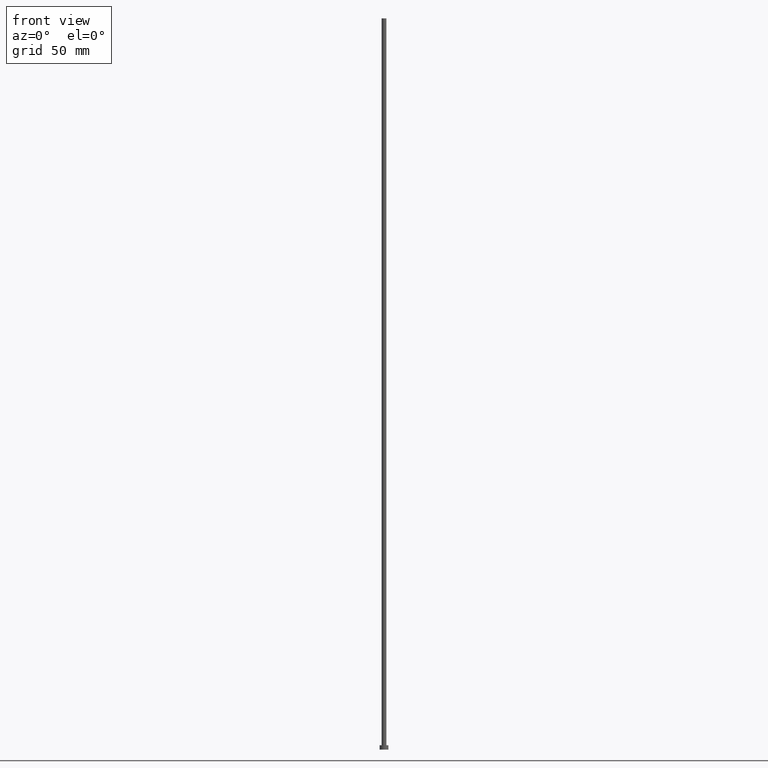
[diagram: clean part render]
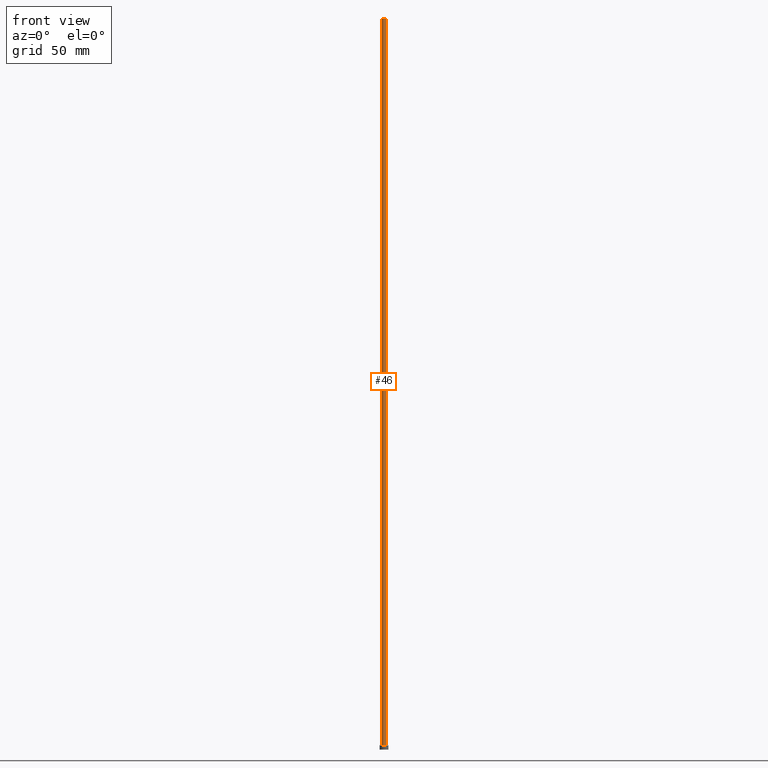
[diagram: same view with one face highlighted and labeled with its STEP entity id]
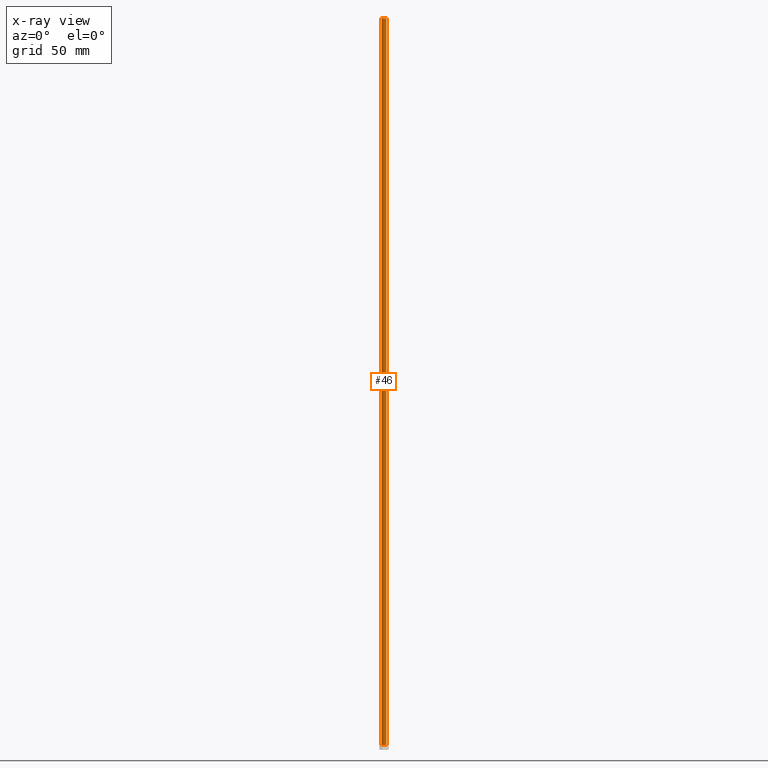
[diagram: x-ray of the same camera — body ghosted, the highlighted face saturated]
A machine part, front view. The second image highlights one B-rep face of the part: STEP entity #46.
The next image is the same camera in x-ray: the body ghosted, the highlighted face saturated — about 0% of this face is hidden behind the body in this view.
In plain terms, the highlighted cylindrical surface (edge-blend (fillet) strip) has radius 1.6 mm, axis along (-0, -0, -1).
Its self-contained STEP definition (entity closure, byte-faithful):
#7 = VECTOR ( 'NONE', #174, 1000.000000000000000 ) ;
#18 = VERTEX_POINT ( 'NONE', #149 ) ;
#22 = CARTESIAN_POINT ( 'NONE',  ( 0.000000000000000000, 0.000000000000000000, 500.0000000000000000 ) ) ;
#23 = ORIENTED_EDGE ( 'NONE', *, *, #136, .T. ) ;
#28 = CARTESIAN_POINT ( 'NONE',  ( -1.600000000000000089, 0.000000000000000000, 500.0000000000000000 ) ) ;
#30 = CARTESIAN_POINT ( 'NONE',  ( 0.000000000000000000, 0.000000000000000000, 3.000000000000000000 ) ) ;
#31 = CIRCLE ( 'NONE', #199, 1.600000000000000089 ) ;
#39 = EDGE_LOOP ( 'NONE', ( #222, #84, #166, #23 ) ) ;
#45 = EDGE_CURVE ( 'NONE', #133, #185, #31, .T. ) ;
#46 = ADVANCED_FACE ( 'NONE', ( #197 ), #57, .T. ) ;
#48 = LINE ( 'NONE', #141, #178 ) ;
#57 = CYLINDRICAL_SURFACE ( 'NONE', #97, 1.600000000000000089 ) ;
#58 = VERTEX_POINT ( 'NONE', #254 ) ;
#84 = ORIENTED_EDGE ( 'NONE', *, *, #45, .F. ) ;
#97 = AXIS2_PLACEMENT_3D ( 'NONE', #150, #126, #198 ) ;
#110 = DIRECTION ( 'NONE',  ( 1.000000000000000000, 0.000000000000000000, 0.000000000000000000 ) ) ;
#126 = DIRECTION ( 'NONE',  ( -0.000000000000000000, -0.000000000000000000, -1.000000000000000000 ) ) ;
#133 = VERTEX_POINT ( 'NONE', #206 ) ;
#135 = LINE ( 'NONE', #28, #7 ) ;
#136 = EDGE_CURVE ( 'NONE', #18, #58, #221, .T. ) ;
#141 = CARTESIAN_POINT ( 'NONE',  ( 1.600000000000000089, 1.959434878635764737E-16, 500.0000000000000000 ) ) ;
#149 = CARTESIAN_POINT ( 'NONE',  ( -1.600000000000000089, 0.000000000000000000, 3.000000000000000000 ) ) ;
#150 = CARTESIAN_POINT ( 'NONE',  ( 0.000000000000000000, 0.000000000000000000, 500.0000000000000000 ) ) ;
#166 = ORIENTED_EDGE ( 'NONE', *, *, #188, .T. ) ;
#170 = EDGE_CURVE ( 'NONE', #185, #58, #48, .T. ) ;
#174 = DIRECTION ( 'NONE',  ( -0.000000000000000000, -0.000000000000000000, -1.000000000000000000 ) ) ;
#178 = VECTOR ( 'NONE', #208, 1000.000000000000000 ) ;
#185 = VERTEX_POINT ( 'NONE', #223 ) ;
#188 = EDGE_CURVE ( 'NONE', #133, #18, #135, .T. ) ;
#191 = DIRECTION ( 'NONE',  ( 0.000000000000000000, 0.000000000000000000, 1.000000000000000000 ) ) ;
#197 = FACE_OUTER_BOUND ( 'NONE', #39, .T. ) ;
#198 = DIRECTION ( 'NONE',  ( -1.000000000000000000, 0.000000000000000000, 0.000000000000000000 ) ) ;
#199 = AXIS2_PLACEMENT_3D ( 'NONE', #22, #237, #217 ) ;
#206 = CARTESIAN_POINT ( 'NONE',  ( -1.600000000000000089, 0.000000000000000000, 500.0000000000000000 ) ) ;
#208 = DIRECTION ( 'NONE',  ( -0.000000000000000000, -0.000000000000000000, -1.000000000000000000 ) ) ;
#217 = DIRECTION ( 'NONE',  ( 1.000000000000000000, 0.000000000000000000, 0.000000000000000000 ) ) ;
#221 = CIRCLE ( 'NONE', #242, 1.600000000000000089 ) ;
#222 = ORIENTED_EDGE ( 'NONE', *, *, #170, .F. ) ;
#223 = CARTESIAN_POINT ( 'NONE',  ( 1.600000000000000089, 1.959434878635764737E-16, 500.0000000000000000 ) ) ;
#237 = DIRECTION ( 'NONE',  ( 0.000000000000000000, 0.000000000000000000, 1.000000000000000000 ) ) ;
#242 = AXIS2_PLACEMENT_3D ( 'NONE', #30, #191, #110 ) ;
#254 = CARTESIAN_POINT ( 'NONE',  ( 1.600000000000000089, 1.959434878635764737E-16, 3.000000000000000000 ) ) ;